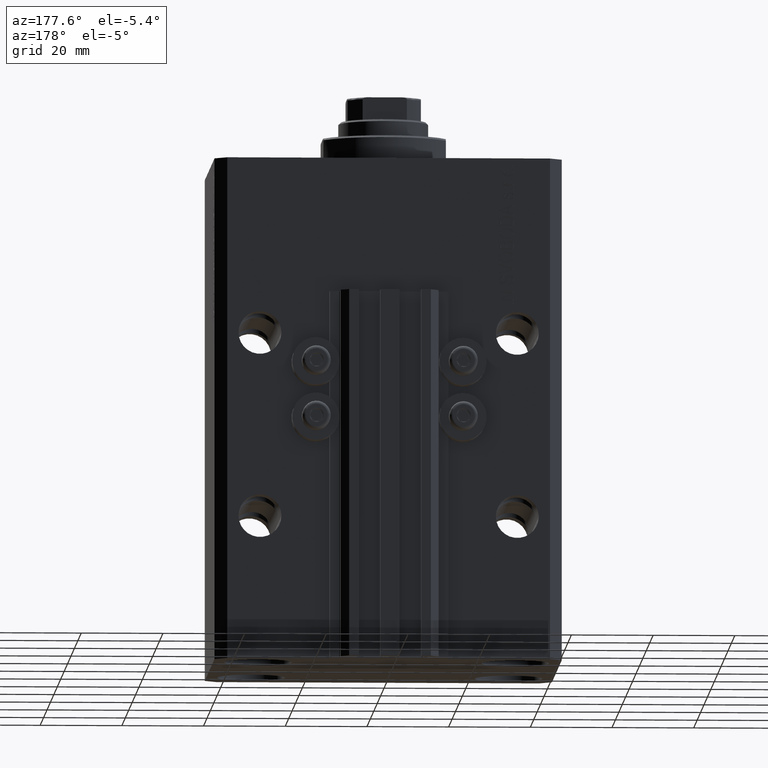
[diagram: clean part render]
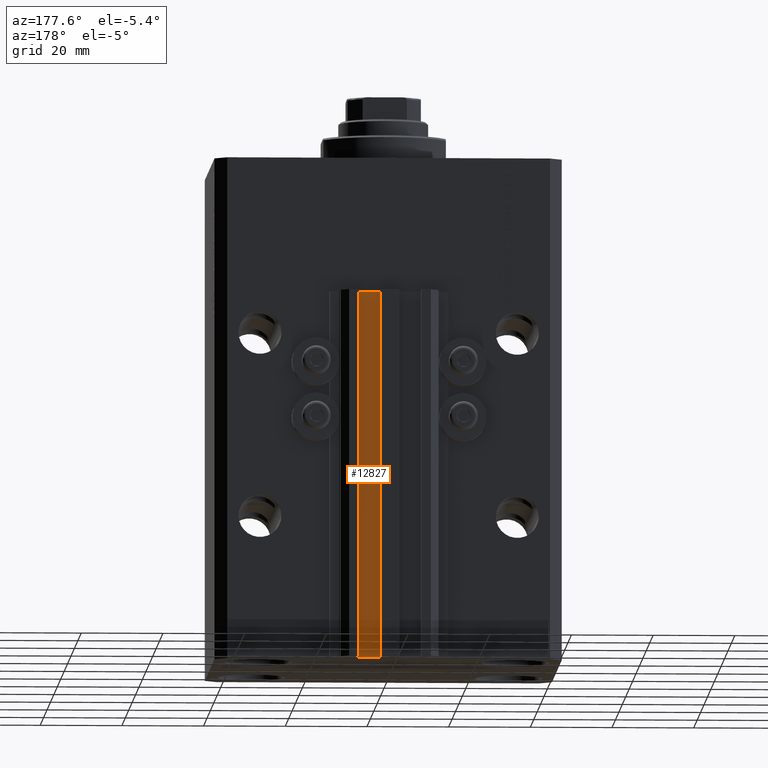
[diagram: same view with one face highlighted and labeled with its STEP entity id]
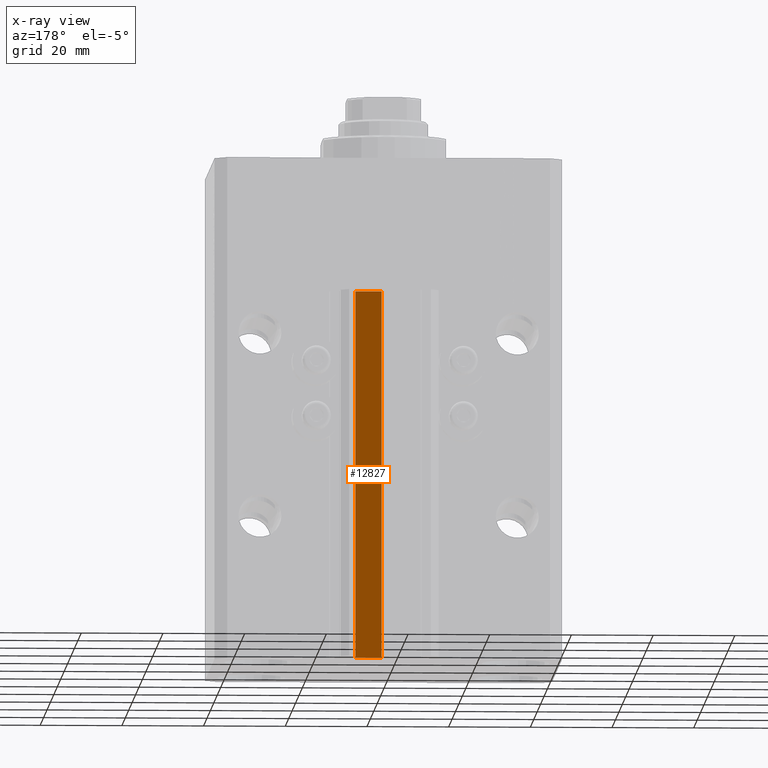
[diagram: x-ray of the same camera — body ghosted, the highlighted face saturated]
A machine part, auxiliary view. The second image highlights one B-rep face of the part: STEP entity #12827.
The next image is the same camera in x-ray: the body ghosted, the highlighted face saturated — about 0% of this face is hidden behind the body in this view.
In plain terms, the highlighted planar face has unit normal (0, 1, 0).
Its self-contained STEP definition (entity closure, byte-faithful):
#180 = EDGE_CURVE ( 'NONE', #7740, #36435, #40547, .T. ) ;
#1416 = PLANE ( 'NONE',  #39102 ) ;
#1752 = LINE ( 'NONE', #45531, #3678 ) ;
#3678 = VECTOR ( 'NONE', #20010, 1000.000000000000000 ) ;
#4022 = VECTOR ( 'NONE', #36787, 1000.000000000000000 ) ;
#4347 = DIRECTION ( 'NONE',  ( 0.000000000000000000, 1.000000000000000000, -0.000000000000000000 ) ) ;
#4503 = EDGE_LOOP ( 'NONE', ( #25785, #35935, #29355, #11891 ) ) ;
#6682 = CARTESIAN_POINT ( 'NONE',  ( 8.199999999999999289, 33.50000000000000000, -123.0000000000000000 ) ) ;
#7740 = VERTEX_POINT ( 'NONE', #46796 ) ;
#8496 = EDGE_CURVE ( 'NONE', #45997, #17821, #14466, .T. ) ;
#11407 = DIRECTION ( 'NONE',  ( -1.000000000000000000, 0.000000000000000000, 0.000000000000000000 ) ) ;
#11891 = ORIENTED_EDGE ( 'NONE', *, *, #32386, .T. ) ;
#12827 = ADVANCED_FACE ( 'NONE', ( #30591 ), #1416, .T. ) ;
#14466 = LINE ( 'NONE', #6682, #4022 ) ;
#16861 = CARTESIAN_POINT ( 'NONE',  ( 1.800000000000000933, 33.50000000000000000, -33.00000000000000000 ) ) ;
#17821 = VERTEX_POINT ( 'NONE', #19875 ) ;
#19196 = DIRECTION ( 'NONE',  ( 0.000000000000000000, 0.000000000000000000, 1.000000000000000000 ) ) ;
#19641 = CARTESIAN_POINT ( 'NONE',  ( 8.199999999999999289, 33.50000000000000000, -123.0000000000000000 ) ) ;
#19875 = CARTESIAN_POINT ( 'NONE',  ( 1.800000000000000933, 33.50000000000000000, -123.0000000000000000 ) ) ;
#20010 = DIRECTION ( 'NONE',  ( 0.000000000000000000, 0.000000000000000000, 1.000000000000000000 ) ) ;
#25785 = ORIENTED_EDGE ( 'NONE', *, *, #180, .F. ) ;
#25897 = DIRECTION ( 'NONE',  ( 0.000000000000000000, 0.000000000000000000, 1.000000000000000000 ) ) ;
#28830 = LINE ( 'NONE', #36828, #46284 ) ;
#29355 = ORIENTED_EDGE ( 'NONE', *, *, #8496, .T. ) ;
#29610 = CARTESIAN_POINT ( 'NONE',  ( 8.199999999999999289, 33.50000000000000000, -33.00000000000000000 ) ) ;
#30591 = FACE_OUTER_BOUND ( 'NONE', #4503, .T. ) ;
#32386 = EDGE_CURVE ( 'NONE', #17821, #36435, #28830, .T. ) ;
#35179 = EDGE_CURVE ( 'NONE', #45997, #7740, #1752, .T. ) ;
#35935 = ORIENTED_EDGE ( 'NONE', *, *, #35179, .F. ) ;
#36435 = VERTEX_POINT ( 'NONE', #16861 ) ;
#36787 = DIRECTION ( 'NONE',  ( -1.000000000000000000, 0.000000000000000000, 0.000000000000000000 ) ) ;
#36828 = CARTESIAN_POINT ( 'NONE',  ( 1.800000000000000933, 33.50000000000000000, -123.0000000000000000 ) ) ;
#38807 = VECTOR ( 'NONE', #11407, 1000.000000000000000 ) ;
#39102 = AXIS2_PLACEMENT_3D ( 'NONE', #44963, #4347, #19196 ) ;
#40547 = LINE ( 'NONE', #29610, #38807 ) ;
#44963 = CARTESIAN_POINT ( 'NONE',  ( 8.199999999999999289, 33.50000000000000000, -123.0000000000000000 ) ) ;
#45531 = CARTESIAN_POINT ( 'NONE',  ( 8.199999999999999289, 33.50000000000000000, -123.0000000000000000 ) ) ;
#45997 = VERTEX_POINT ( 'NONE', #19641 ) ;
#46284 = VECTOR ( 'NONE', #25897, 1000.000000000000000 ) ;
#46796 = CARTESIAN_POINT ( 'NONE',  ( 8.199999999999999289, 33.50000000000000000, -33.00000000000000000 ) ) ;